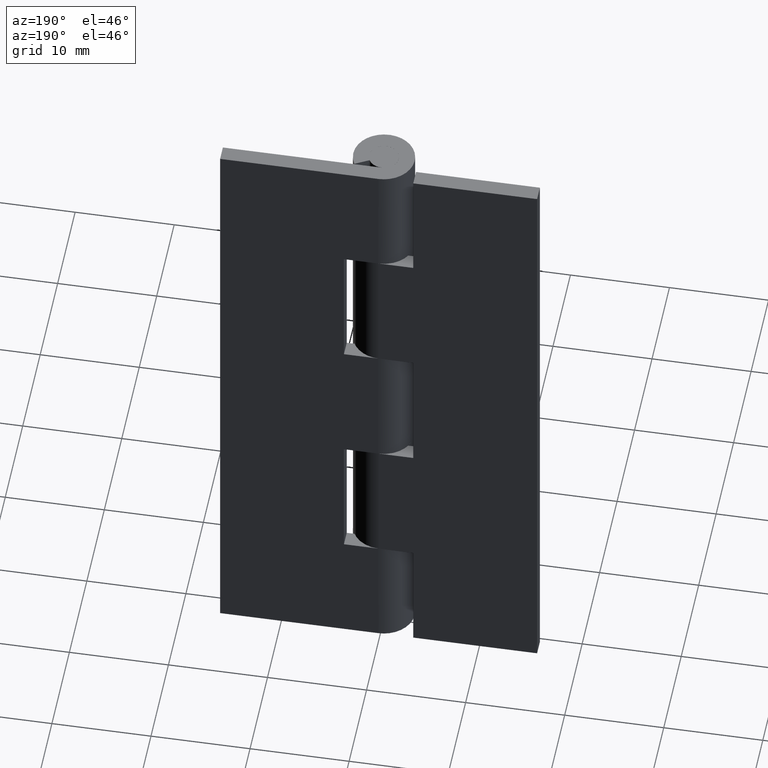
[diagram: clean part render]
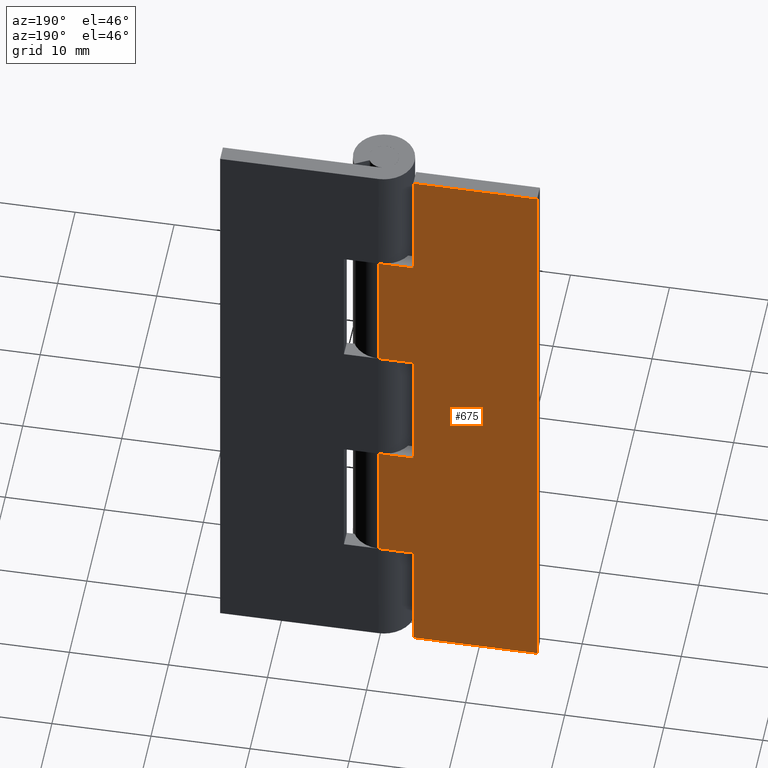
[diagram: same view with one face highlighted and labeled with its STEP entity id]
A machine part, auxiliary view. The second image highlights one B-rep face of the part: STEP entity #675.
In plain terms, the highlighted face is a freeform B-spline surface patch.
Its self-contained STEP definition (entity closure, byte-faithful):
#51=CARTESIAN_POINT('',(-0.003521362805221,3.099998000000000,25.699996999999900));
#52=VERTEX_POINT('',#51);
#58=CARTESIAN_POINT('',(-3.500000000000100,3.099998000000050,25.699996999999900));
#59=VERTEX_POINT('',#58);
#60=CARTESIAN_POINT('',(-0.003521362805221,3.099998000000000,25.699996999999900));
#61=CARTESIAN_POINT('',(-3.500000000000100,3.099998000000050,25.699996999999900));
#62=QUASI_UNIFORM_CURVE('',1,(#60,#61),.UNSPECIFIED.,.F.,.U.);
#63=EDGE_CURVE('',#52,#59,#62,.T.);
#192=CARTESIAN_POINT('',(-3.500000000000100,3.099998000000050,39.300002999999997));
#193=VERTEX_POINT('',#192);
#199=CARTESIAN_POINT('',(-0.003521362805221,3.099998000000000,39.300002999999997));
#200=VERTEX_POINT('',#199);
#201=CARTESIAN_POINT('',(-3.500000000000100,3.099998000000050,39.300002999999997));
#202=CARTESIAN_POINT('',(-0.003521362805221,3.099998000000000,39.300002999999997));
#203=QUASI_UNIFORM_CURVE('',1,(#201,#202),.UNSPECIFIED.,.F.,.U.);
#204=EDGE_CURVE('',#193,#200,#203,.T.);
#220=CARTESIAN_POINT('',(-3.500000000000100,3.099998000000050,25.699996999999900));
#221=CARTESIAN_POINT('',(-3.500000000000100,3.099998000000050,39.300002999999997));
#222=QUASI_UNIFORM_CURVE('',1,(#220,#221),.UNSPECIFIED.,.F.,.U.);
#223=EDGE_CURVE('',#59,#193,#222,.T.);
#248=CARTESIAN_POINT('',(-3.500000000000100,3.099998000000050,-8.326673E-014));
#249=VERTEX_POINT('',#248);
#255=CARTESIAN_POINT('',(-3.500000000000100,3.099998000000050,12.100006000000119));
#256=VERTEX_POINT('',#255);
#257=CARTESIAN_POINT('',(-3.500000000000100,3.099998000000050,-8.326673E-014));
#258=CARTESIAN_POINT('',(-3.500000000000100,3.099998000000050,12.100006000000119));
#259=QUASI_UNIFORM_CURVE('',1,(#257,#258),.UNSPECIFIED.,.F.,.U.);
#260=EDGE_CURVE('',#249,#256,#259,.T.);
#332=CARTESIAN_POINT('',(-0.003521362805221,3.099998000000050,12.100006000000119));
#333=VERTEX_POINT('',#332);
#334=CARTESIAN_POINT('',(-3.500000000000100,3.099998000000050,12.100006000000119));
#335=CARTESIAN_POINT('',(-0.003521362805221,3.099998000000050,12.100006000000119));
#336=QUASI_UNIFORM_CURVE('',1,(#334,#335),.UNSPECIFIED.,.F.,.U.);
#337=EDGE_CURVE('',#256,#333,#336,.T.);
#361=CARTESIAN_POINT('',(-3.500000000000100,3.099998000000050,52.899993999999801));
#362=VERTEX_POINT('',#361);
#368=CARTESIAN_POINT('',(-3.500000000000100,3.099998000000000,65.0));
#369=VERTEX_POINT('',#368);
#370=CARTESIAN_POINT('',(-3.500000000000100,3.099998000000000,65.0));
#371=CARTESIAN_POINT('',(-3.500000000000100,3.099998000000050,52.899993999999801));
#372=QUASI_UNIFORM_CURVE('',1,(#370,#371),.UNSPECIFIED.,.F.,.U.);
#373=EDGE_CURVE('',#369,#362,#372,.T.);
#411=CARTESIAN_POINT('',(-0.003521362805221,3.099998000000050,52.899993999999801));
#412=VERTEX_POINT('',#411);
#418=CARTESIAN_POINT('',(-3.500000000000100,3.099998000000050,52.899993999999801));
#419=CARTESIAN_POINT('',(-0.003521362805221,3.099998000000050,52.899993999999801));
#420=QUASI_UNIFORM_CURVE('',1,(#418,#419),.UNSPECIFIED.,.F.,.U.);
#421=EDGE_CURVE('',#362,#412,#420,.T.);
#467=CARTESIAN_POINT('',(-16.0,3.099998000000000,65.0));
#468=VERTEX_POINT('',#467);
#474=CARTESIAN_POINT('',(-16.0,3.099998000000000,0.0));
#475=VERTEX_POINT('',#474);
#476=CARTESIAN_POINT('',(-16.0,3.099998000000000,0.0));
#477=CARTESIAN_POINT('',(-16.0,3.099998000000000,65.0));
#478=QUASI_UNIFORM_CURVE('',1,(#476,#477),.UNSPECIFIED.,.F.,.U.);
#479=EDGE_CURVE('',#475,#468,#478,.T.);
#502=CARTESIAN_POINT('',(-16.0,3.099998000000000,65.0));
#503=CARTESIAN_POINT('',(-3.500000000000100,3.099998000000000,65.0));
#504=QUASI_UNIFORM_CURVE('',1,(#502,#503),.UNSPECIFIED.,.F.,.U.);
#505=EDGE_CURVE('',#468,#369,#504,.T.);
#521=CARTESIAN_POINT('',(-16.0,3.099998000000000,0.0));
#522=CARTESIAN_POINT('',(-3.500000000000100,3.099998000000050,-8.326673E-014));
#523=QUASI_UNIFORM_CURVE('',1,(#521,#522),.UNSPECIFIED.,.F.,.U.);
#524=EDGE_CURVE('',#475,#249,#523,.T.);
#637=CARTESIAN_POINT('',(-0.003521362805221,3.099998000000000,39.300002999999997));
#638=CARTESIAN_POINT('',(-0.003521362805221,3.099998000000050,52.899993999999801));
#639=QUASI_UNIFORM_CURVE('',1,(#637,#638),.UNSPECIFIED.,.F.,.U.);
#640=EDGE_CURVE('',#200,#412,#639,.T.);
#652=CARTESIAN_POINT('',(-16.799024076923601,3.099998000000000,68.246749874017382));
#653=CARTESIAN_POINT('',(-16.799024076923601,3.099998000000000,-3.246751617453336));
#654=CARTESIAN_POINT('',(0.795503143177371,3.099998000000000,68.246749874017382));
#655=CARTESIAN_POINT('',(0.795503143177371,3.099998000000000,-3.246751617453336));
#656=B_SPLINE_SURFACE_WITH_KNOTS('',1,1,((#652,#654),(#653,#655)),.UNSPECIFIED.,.F.,.F.,.U.,(2,2),(2,2),(0.0,71.493501491470724),(0.0,17.594527220100971),.UNSPECIFIED.);
#657=ORIENTED_EDGE('',*,*,#640,.F.);
#658=ORIENTED_EDGE('',*,*,#204,.F.);
#659=ORIENTED_EDGE('',*,*,#223,.F.);
#660=ORIENTED_EDGE('',*,*,#63,.F.);
#661=CARTESIAN_POINT('',(-0.003521362805221,3.099998000000050,12.100006000000119));
#662=CARTESIAN_POINT('',(-0.003521362805221,3.099998000000000,25.699996999999900));
#663=QUASI_UNIFORM_CURVE('',1,(#661,#662),.UNSPECIFIED.,.F.,.U.);
#664=EDGE_CURVE('',#333,#52,#663,.T.);
#665=ORIENTED_EDGE('',*,*,#664,.F.);
#666=ORIENTED_EDGE('',*,*,#337,.F.);
#667=ORIENTED_EDGE('',*,*,#260,.F.);
#668=ORIENTED_EDGE('',*,*,#524,.F.);
#669=ORIENTED_EDGE('',*,*,#479,.T.);
#670=ORIENTED_EDGE('',*,*,#505,.T.);
#671=ORIENTED_EDGE('',*,*,#373,.T.);
#672=ORIENTED_EDGE('',*,*,#421,.T.);
#673=EDGE_LOOP('',(#657,#658,#659,#660,#665,#666,#667,#668,#669,#670,#671,#672));
#674=FACE_OUTER_BOUND('',#673,.T.);
#675=ADVANCED_FACE('',(#674),#656,.F.);